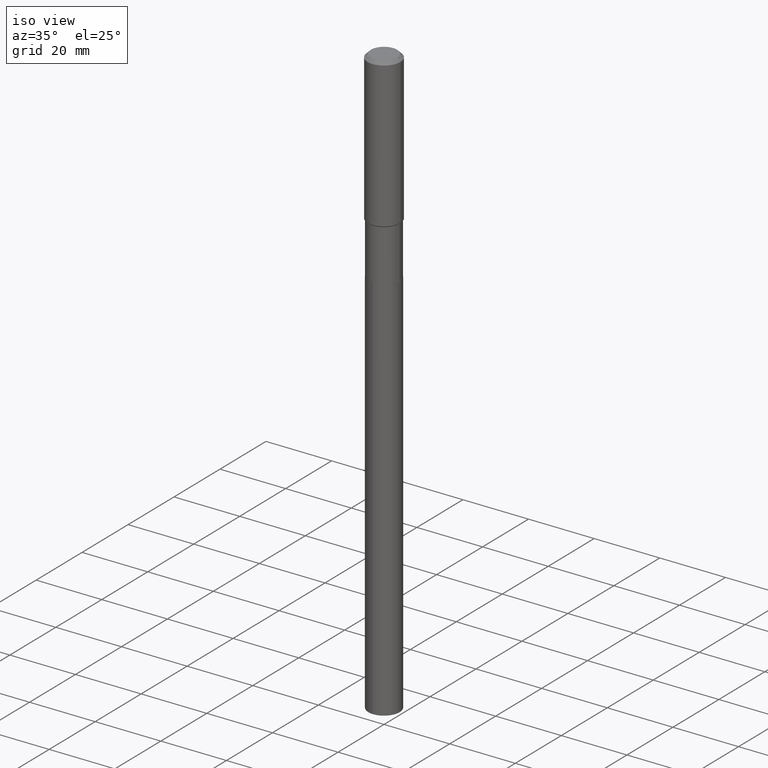
[diagram: clean part render]
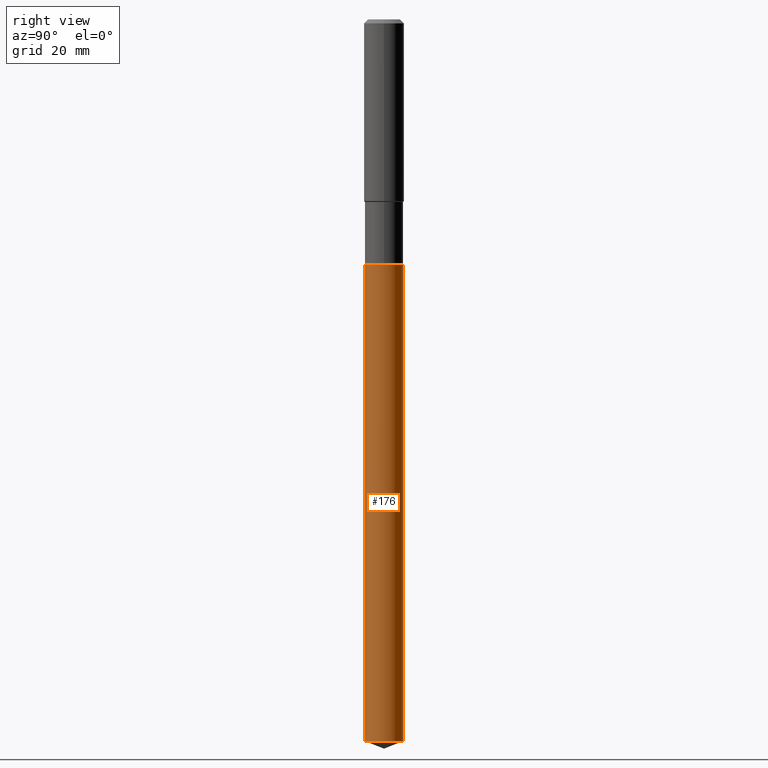
[diagram: tour spotlight — one face highlighted and labeled with its STEP entity id]
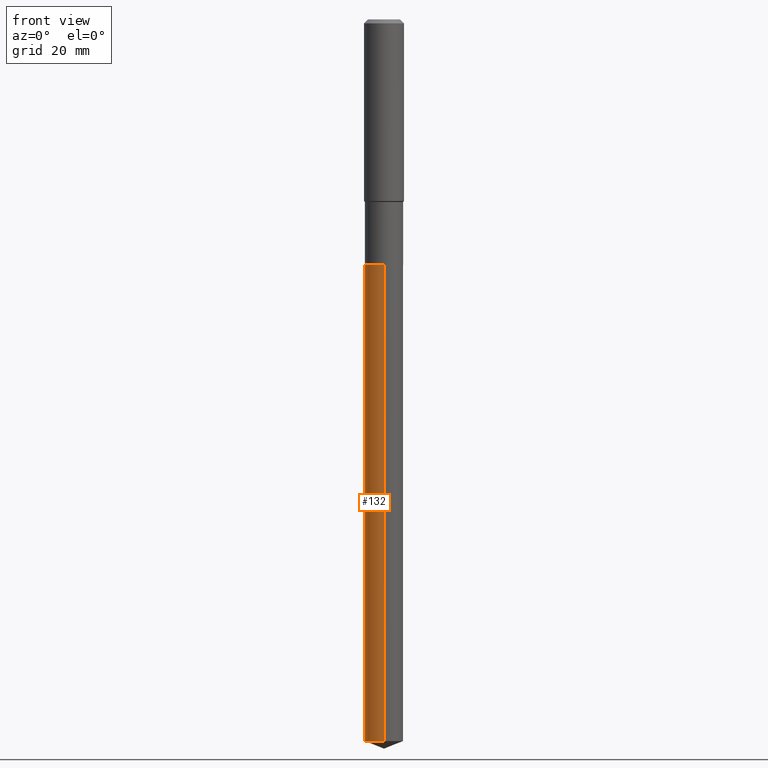
[diagram: tour spotlight — one face highlighted and labeled with its STEP entity id]
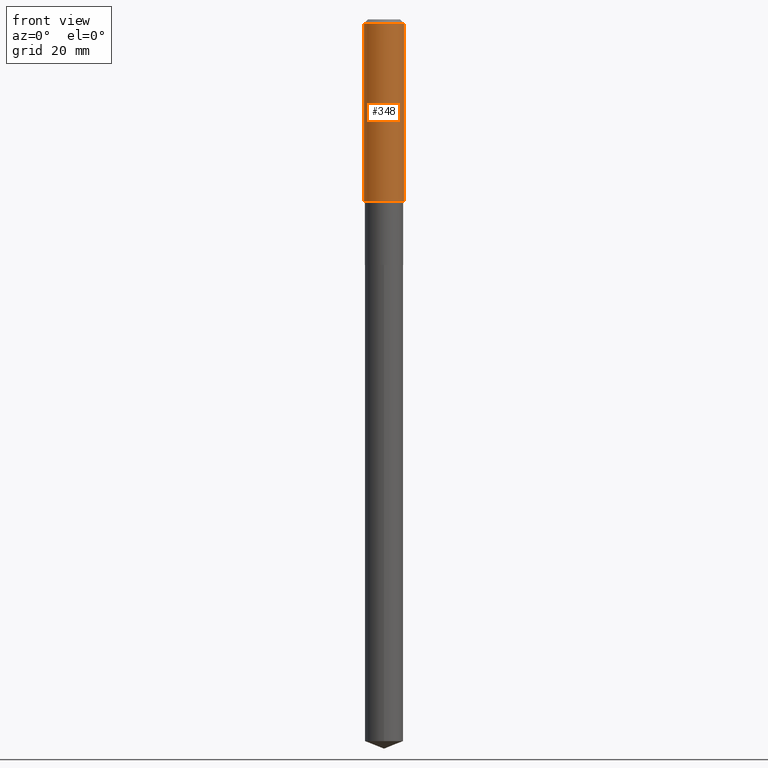
[diagram: tour spotlight — one face highlighted and labeled with its STEP entity id]
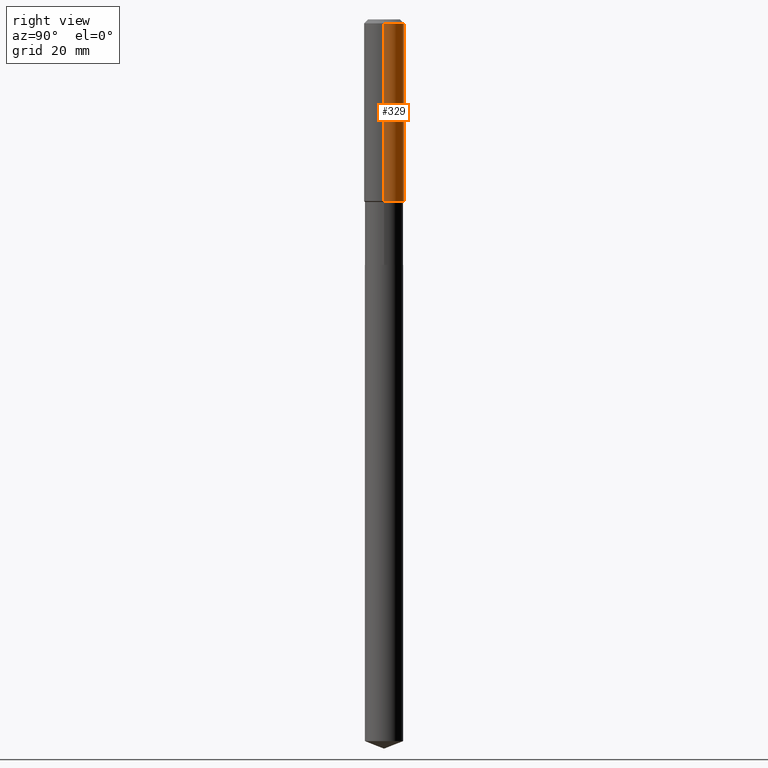
[diagram: tour spotlight — one face highlighted and labeled with its STEP entity id]
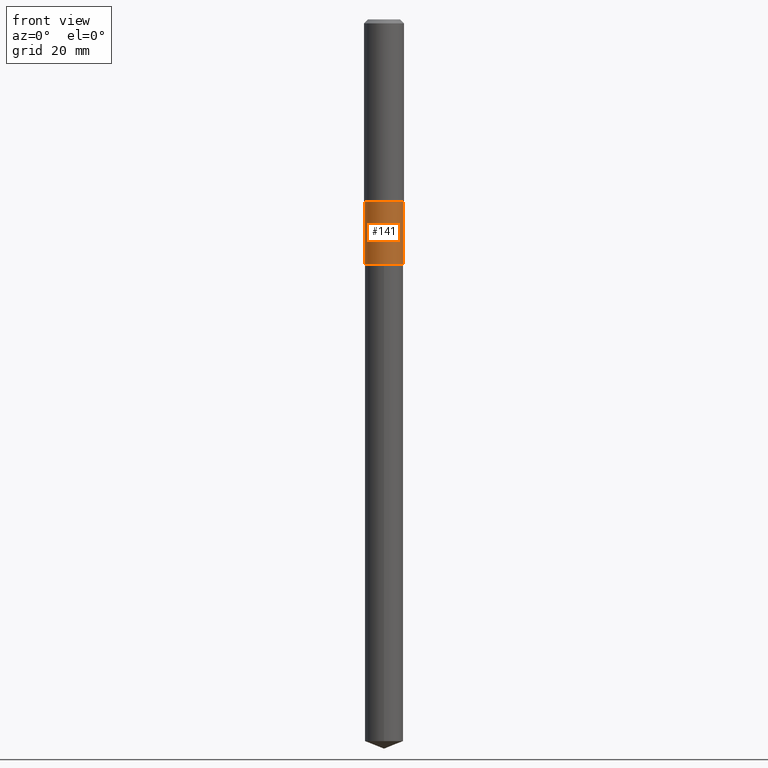
[diagram: tour spotlight — one face highlighted and labeled with its STEP entity id]
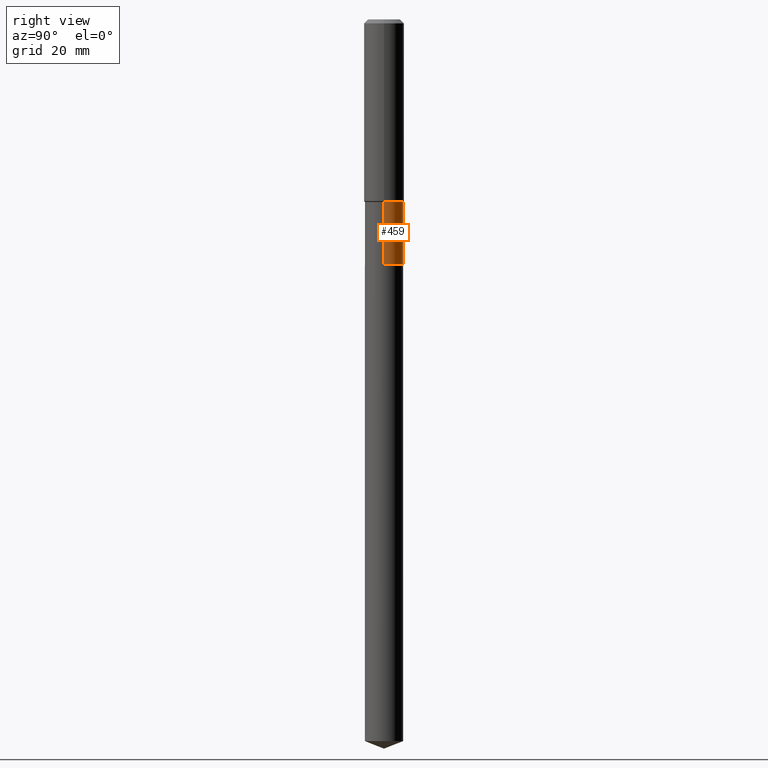
[diagram: tour spotlight — one face highlighted and labeled with its STEP entity id]
A machine part: a face-by-face anatomy tour. The part has 17 B-rep faces; the first image is the clean iso view, then the 6 largest visible faces are spotlighted one at a time (largest first), each with its STEP entity span.

Face 1 — right view, entity #176. In plain terms, the highlighted cylindrical surface (edge-blend (fillet) strip) has radius 4.7625 mm, axis along (-0, 0, 1).
Definition (entity closure, byte-faithful):
#20 = DIRECTION ( 'NONE',  ( -2.445489751636567891E-29, 3.491451343764555193E-15, 1.000000000000000000 ) ) ;
#24 = VERTEX_POINT ( 'NONE', #182 ) ;
#28 = ORIENTED_EDGE ( 'NONE', *, *, #269, .T. ) ;
#43 = EDGE_CURVE ( 'NONE', #368, #24, #467, .T. ) ;
#56 = CARTESIAN_POINT ( 'NONE',  ( -1.309305502066116041E-15, -0.1875000000000084377, -2.412499999999998757 ) ) ;
#65 = CARTESIAN_POINT ( 'NONE',  ( 5.899693494921640470E-29, -8.423198729959086830E-15, -2.412499999999999645 ) ) ;
#69 = VECTOR ( 'NONE', #237, 39.37007874015748143 ) ;
#71 = ORIENTED_EDGE ( 'NONE', *, *, #43, .T. ) ;
#77 = CIRCLE ( 'NONE', #188, 0.1875000000000000278 ) ;
#97 = CYLINDRICAL_SURFACE ( 'NONE', #257, 0.1875000000000000278 ) ;
#107 = CARTESIAN_POINT ( 'NONE',  ( 1.734126403372843801E-28, -2.475844888006100579E-14, -7.091141785822198784 ) ) ;
#140 = DIRECTION ( 'NONE',  ( -2.445489751636567891E-29, 3.491451343764555193E-15, 1.000000000000000000 ) ) ;
#142 = EDGE_LOOP ( 'NONE', ( #71, #28, #409, #482 ) ) ;
#150 = EDGE_CURVE ( 'NONE', #368, #279, #300, .T. ) ;
#171 = VECTOR ( 'NONE', #369, 39.37007874015748143 ) ;
#174 = LINE ( 'NONE', #476, #171 ) ;
#175 = DIRECTION ( 'NONE',  ( -2.445489751636567891E-29, 3.491451343764555193E-15, 1.000000000000000000 ) ) ;
#176 = ADVANCED_FACE ( 'NONE', ( #201 ), #97, .T. ) ;
#182 = CARTESIAN_POINT ( 'NONE',  ( 1.332267629550361595E-15, 0.1874999999999753253, -7.091141785822199672 ) ) ;
#188 = AXIS2_PLACEMENT_3D ( 'NONE', #65, #175, #312 ) ;
#200 = EDGE_CURVE ( 'NONE', #279, #478, #77, .T. ) ;
#201 = FACE_OUTER_BOUND ( 'NONE', #142, .T. ) ;
#218 = CARTESIAN_POINT ( 'NONE',  ( -1.309305502066116041E-15, -0.1875000000000084377, -2.412499999999998757 ) ) ;
#237 = DIRECTION ( 'NONE',  ( -2.445489751636567891E-29, 3.491451343764555193E-15, 1.000000000000000000 ) ) ;
#242 = AXIS2_PLACEMENT_3D ( 'NONE', #107, #140, #439 ) ;
#257 = AXIS2_PLACEMENT_3D ( 'NONE', #431, #20, #305 ) ;
#269 = EDGE_CURVE ( 'NONE', #24, #478, #174, .T. ) ;
#279 = VERTEX_POINT ( 'NONE', #218 ) ;
#300 = LINE ( 'NONE', #56, #69 ) ;
#305 = DIRECTION ( 'NONE',  ( -6.982962677686265922E-15, -1.000000000000000000, 2.913971193241880372E-15 ) ) ;
#312 = DIRECTION ( 'NONE',  ( -6.982962677686265922E-15, -1.000000000000000000, 2.913971193241880372E-15 ) ) ;
#368 = VERTEX_POINT ( 'NONE', #387 ) ;
#369 = DIRECTION ( 'NONE',  ( -2.445489751636567891E-29, 3.491451343764555193E-15, 1.000000000000000000 ) ) ;
#384 = CARTESIAN_POINT ( 'NONE',  ( 1.332267629550361990E-15, 0.1874999999999915901, -2.412500000000000089 ) ) ;
#387 = CARTESIAN_POINT ( 'NONE',  ( -1.309305502066002050E-15, -0.1875000000000248412, -7.091141785822197896 ) ) ;
#409 = ORIENTED_EDGE ( 'NONE', *, *, #200, .F. ) ;
#431 = CARTESIAN_POINT ( 'NONE',  ( 5.899693494921640470E-29, -8.423198729959086830E-15, -2.412499999999999645 ) ) ;
#439 = DIRECTION ( 'NONE',  ( -6.982962677686265922E-15, -1.000000000000000000, 5.827942386483760744E-15 ) ) ;
#467 = CIRCLE ( 'NONE', #242, 0.1875000000000000278 ) ;
#476 = CARTESIAN_POINT ( 'NONE',  ( 1.332267629550246619E-15, 0.1874999999999915901, -2.412500000000000089 ) ) ;
#478 = VERTEX_POINT ( 'NONE', #384 ) ;
#482 = ORIENTED_EDGE ( 'NONE', *, *, #150, .F. ) ;

Face 2 — front view, entity #132. In plain terms, the highlighted cylindrical surface (edge-blend (fillet) strip) has radius 4.7625 mm, axis along (-0, 0, 1).
Definition (entity closure, byte-faithful):
#6 = DIRECTION ( 'NONE',  ( -6.982962677686265922E-15, -1.000000000000000000, 2.913971193241880372E-15 ) ) ;
#24 = VERTEX_POINT ( 'NONE', #182 ) ;
#42 = FACE_OUTER_BOUND ( 'NONE', #360, .T. ) ;
#56 = CARTESIAN_POINT ( 'NONE',  ( -1.309305502066116041E-15, -0.1875000000000084377, -2.412499999999998757 ) ) ;
#69 = VECTOR ( 'NONE', #237, 39.37007874015748143 ) ;
#101 = EDGE_CURVE ( 'NONE', #24, #368, #207, .T. ) ;
#123 = DIRECTION ( 'NONE',  ( -6.982962677686265922E-15, -1.000000000000000000, 5.827942386483760744E-15 ) ) ;
#132 = ADVANCED_FACE ( 'NONE', ( #42 ), #335, .T. ) ;
#135 = EDGE_CURVE ( 'NONE', #478, #279, #367, .T. ) ;
#150 = EDGE_CURVE ( 'NONE', #368, #279, #300, .T. ) ;
#152 = CARTESIAN_POINT ( 'NONE',  ( 5.899693494921640470E-29, -8.423198729959086830E-15, -2.412499999999999645 ) ) ;
#161 = DIRECTION ( 'NONE',  ( -2.445489751636567891E-29, 3.491451343764555193E-15, 1.000000000000000000 ) ) ;
#171 = VECTOR ( 'NONE', #369, 39.37007874015748143 ) ;
#174 = LINE ( 'NONE', #476, #171 ) ;
#182 = CARTESIAN_POINT ( 'NONE',  ( 1.332267629550361595E-15, 0.1874999999999753253, -7.091141785822199672 ) ) ;
#194 = DIRECTION ( 'NONE',  ( -6.982962677686265922E-15, -1.000000000000000000, 2.913971193241880372E-15 ) ) ;
#202 = DIRECTION ( 'NONE',  ( -2.445489751636567891E-29, 3.491451343764555193E-15, 1.000000000000000000 ) ) ;
#207 = CIRCLE ( 'NONE', #265, 0.1875000000000000278 ) ;
#218 = CARTESIAN_POINT ( 'NONE',  ( -1.309305502066116041E-15, -0.1875000000000084377, -2.412499999999998757 ) ) ;
#222 = ORIENTED_EDGE ( 'NONE', *, *, #269, .F. ) ;
#237 = DIRECTION ( 'NONE',  ( -2.445489751636567891E-29, 3.491451343764555193E-15, 1.000000000000000000 ) ) ;
#249 = AXIS2_PLACEMENT_3D ( 'NONE', #152, #418, #6 ) ;
#251 = ORIENTED_EDGE ( 'NONE', *, *, #135, .F. ) ;
#265 = AXIS2_PLACEMENT_3D ( 'NONE', #461, #202, #123 ) ;
#269 = EDGE_CURVE ( 'NONE', #24, #478, #174, .T. ) ;
#271 = ORIENTED_EDGE ( 'NONE', *, *, #101, .T. ) ;
#279 = VERTEX_POINT ( 'NONE', #218 ) ;
#300 = LINE ( 'NONE', #56, #69 ) ;
#335 = CYLINDRICAL_SURFACE ( 'NONE', #249, 0.1875000000000000278 ) ;
#360 = EDGE_LOOP ( 'NONE', ( #222, #271, #434, #251 ) ) ;
#367 = CIRCLE ( 'NONE', #381, 0.1875000000000000278 ) ;
#368 = VERTEX_POINT ( 'NONE', #387 ) ;
#369 = DIRECTION ( 'NONE',  ( -2.445489751636567891E-29, 3.491451343764555193E-15, 1.000000000000000000 ) ) ;
#381 = AXIS2_PLACEMENT_3D ( 'NONE', #458, #161, #194 ) ;
#384 = CARTESIAN_POINT ( 'NONE',  ( 1.332267629550361990E-15, 0.1874999999999915901, -2.412500000000000089 ) ) ;
#387 = CARTESIAN_POINT ( 'NONE',  ( -1.309305502066002050E-15, -0.1875000000000248412, -7.091141785822197896 ) ) ;
#418 = DIRECTION ( 'NONE',  ( -2.445489751636567891E-29, 3.491451343764555193E-15, 1.000000000000000000 ) ) ;
#434 = ORIENTED_EDGE ( 'NONE', *, *, #150, .T. ) ;
#458 = CARTESIAN_POINT ( 'NONE',  ( 5.899693494921640470E-29, -8.423198729959086830E-15, -2.412499999999999645 ) ) ;
#461 = CARTESIAN_POINT ( 'NONE',  ( 1.734126403372843801E-28, -2.475844888006100579E-14, -7.091141785822198784 ) ) ;
#476 = CARTESIAN_POINT ( 'NONE',  ( 1.332267629550246619E-15, 0.1874999999999915901, -2.412500000000000089 ) ) ;
#478 = VERTEX_POINT ( 'NONE', #384 ) ;

Face 3 — front view, entity #348. In plain terms, the highlighted cylindrical surface (edge-blend (fillet) strip) has radius 5 mm, axis along (-0, 0, 1).
Definition (entity closure, byte-faithful):
#4 = AXIS2_PLACEMENT_3D ( 'NONE', #473, #96, #235 ) ;
#8 = LINE ( 'NONE', #116, #114 ) ;
#32 = ORIENTED_EDGE ( 'NONE', *, *, #105, .T. ) ;
#61 = DIRECTION ( 'NONE',  ( -2.445468806185136597E-29, 3.491481338843145583E-15, 1.000000000000000000 ) ) ;
#62 = AXIS2_PLACEMENT_3D ( 'NONE', #270, #61, #471 ) ;
#63 = CIRCLE ( 'NONE', #317, 0.1968500000000000250 ) ;
#67 = ORIENTED_EDGE ( 'NONE', *, *, #219, .F. ) ;
#74 = EDGE_CURVE ( 'NONE', #438, #361, #8, .T. ) ;
#91 = CARTESIAN_POINT ( 'NONE',  ( 0.1968500000000001082, -1.374596203102542397E-15, 9.598753983154305062E-30 ) ) ;
#96 = DIRECTION ( 'NONE',  ( -2.445468806185136597E-29, 3.491481338843145583E-15, 1.000000000000000000 ) ) ;
#104 = EDGE_CURVE ( 'NONE', #438, #127, #301, .T. ) ;
#105 = EDGE_CURVE ( 'NONE', #127, #210, #238, .T. ) ;
#114 = VECTOR ( 'NONE', #199, 39.37007874015748143 ) ;
#116 = CARTESIAN_POINT ( 'NONE',  ( -0.1968500000000001082, 1.398703375343757985E-15, -9.682923725166787881E-30 ) ) ;
#127 = VERTEX_POINT ( 'NONE', #347 ) ;
#146 = EDGE_LOOP ( 'NONE', ( #166, #444, #32, #67 ) ) ;
#166 = ORIENTED_EDGE ( 'NONE', *, *, #74, .F. ) ;
#172 = CYLINDRICAL_SURFACE ( 'NONE', #4, 0.1968500000000001082 ) ;
#199 = DIRECTION ( 'NONE',  ( -2.445468806185136877E-29, 3.491481338843145188E-15, 1.000000000000000000 ) ) ;
#210 = VERTEX_POINT ( 'NONE', #362 ) ;
#219 = EDGE_CURVE ( 'NONE', #361, #210, #63, .T. ) ;
#225 = DIRECTION ( 'NONE',  ( -2.445468806185136877E-29, 3.491481338843145188E-15, 1.000000000000000000 ) ) ;
#235 = DIRECTION ( 'NONE',  ( 1.000000000000000000, -6.982962677686266711E-15, 4.876176775795935793E-29 ) ) ;
#238 = LINE ( 'NONE', #91, #325 ) ;
#270 = CARTESIAN_POINT ( 'NONE',  ( 4.363572264316447914E-29, -6.230024726964765516E-15, -1.784349999999999881 ) ) ;
#292 = DIRECTION ( 'NONE',  ( -2.445468806185136597E-29, 3.491481338843145583E-15, 1.000000000000000000 ) ) ;
#301 = CIRCLE ( 'NONE', #62, 0.1968500000000002192 ) ;
#317 = AXIS2_PLACEMENT_3D ( 'NONE', #377, #292, #445 ) ;
#325 = VECTOR ( 'NONE', #225, 39.37007874015748143 ) ;
#347 = CARTESIAN_POINT ( 'NONE',  ( 0.1968500000000002192, -7.604620930067308702E-15, -1.784349999999999881 ) ) ;
#348 = ADVANCED_FACE ( 'NONE', ( #354 ), #172, .T. ) ;
#354 = FACE_OUTER_BOUND ( 'NONE', #146, .T. ) ;
#361 = VERTEX_POINT ( 'NONE', #391 ) ;
#362 = CARTESIAN_POINT ( 'NONE',  ( 0.1968500000000000250, -1.512055823412797189E-15, -0.03937000000000026589 ) ) ;
#377 = CARTESIAN_POINT ( 'NONE',  ( 9.627810689950948900E-31, -1.374596203102555561E-16, -0.03937000000000026589 ) ) ;
#391 = CARTESIAN_POINT ( 'NONE',  ( -0.1968500000000000250, -1.785038798293752366E-15, -0.03937000000000026589 ) ) ;
#419 = CARTESIAN_POINT ( 'NONE',  ( -0.1968500000000002192, -4.831321351621006940E-15, -1.784349999999999881 ) ) ;
#438 = VERTEX_POINT ( 'NONE', #419 ) ;
#444 = ORIENTED_EDGE ( 'NONE', *, *, #104, .T. ) ;
#445 = DIRECTION ( 'NONE',  ( 1.000000000000000000, -6.982962677686265922E-15, 0.000000000000000000 ) ) ;
#471 = DIRECTION ( 'NONE',  ( 1.000000000000000000, -6.982962677686265922E-15, 0.000000000000000000 ) ) ;
#473 = CARTESIAN_POINT ( 'NONE',  ( 0.000000000000000000, 0.000000000000000000, 0.000000000000000000 ) ) ;

Face 4 — right view, entity #329. In plain terms, the highlighted cylindrical surface (edge-blend (fillet) strip) has radius 5 mm, axis along (-0, 0, 1).
Definition (entity closure, byte-faithful):
#7 = FACE_OUTER_BOUND ( 'NONE', #351, .T. ) ;
#8 = LINE ( 'NONE', #116, #114 ) ;
#13 = EDGE_CURVE ( 'NONE', #127, #438, #23, .T. ) ;
#15 = DIRECTION ( 'NONE',  ( -2.445468806185136597E-29, 3.491481338843145583E-15, 1.000000000000000000 ) ) ;
#23 = CIRCLE ( 'NONE', #54, 0.1968500000000002192 ) ;
#54 = AXIS2_PLACEMENT_3D ( 'NONE', #113, #370, #256 ) ;
#74 = EDGE_CURVE ( 'NONE', #438, #361, #8, .T. ) ;
#91 = CARTESIAN_POINT ( 'NONE',  ( 0.1968500000000001082, -1.374596203102542397E-15, 9.598753983154305062E-30 ) ) ;
#105 = EDGE_CURVE ( 'NONE', #127, #210, #238, .T. ) ;
#112 = ORIENTED_EDGE ( 'NONE', *, *, #74, .T. ) ;
#113 = CARTESIAN_POINT ( 'NONE',  ( 4.363572264316447914E-29, -6.230024726964765516E-15, -1.784349999999999881 ) ) ;
#114 = VECTOR ( 'NONE', #199, 39.37007874015748143 ) ;
#115 = AXIS2_PLACEMENT_3D ( 'NONE', #334, #330, #340 ) ;
#116 = CARTESIAN_POINT ( 'NONE',  ( -0.1968500000000001082, 1.398703375343757985E-15, -9.682923725166787881E-30 ) ) ;
#127 = VERTEX_POINT ( 'NONE', #347 ) ;
#138 = ORIENTED_EDGE ( 'NONE', *, *, #13, .T. ) ;
#170 = CYLINDRICAL_SURFACE ( 'NONE', #428, 0.1968500000000001082 ) ;
#199 = DIRECTION ( 'NONE',  ( -2.445468806185136877E-29, 3.491481338843145188E-15, 1.000000000000000000 ) ) ;
#210 = VERTEX_POINT ( 'NONE', #362 ) ;
#225 = DIRECTION ( 'NONE',  ( -2.445468806185136877E-29, 3.491481338843145188E-15, 1.000000000000000000 ) ) ;
#238 = LINE ( 'NONE', #91, #325 ) ;
#256 = DIRECTION ( 'NONE',  ( 1.000000000000000000, -6.982962677686265922E-15, 0.000000000000000000 ) ) ;
#281 = ORIENTED_EDGE ( 'NONE', *, *, #299, .F. ) ;
#299 = EDGE_CURVE ( 'NONE', #210, #361, #441, .T. ) ;
#303 = CARTESIAN_POINT ( 'NONE',  ( 0.000000000000000000, 0.000000000000000000, 0.000000000000000000 ) ) ;
#325 = VECTOR ( 'NONE', #225, 39.37007874015748143 ) ;
#329 = ADVANCED_FACE ( 'NONE', ( #7 ), #170, .T. ) ;
#330 = DIRECTION ( 'NONE',  ( -2.445468806185136597E-29, 3.491481338843145583E-15, 1.000000000000000000 ) ) ;
#334 = CARTESIAN_POINT ( 'NONE',  ( 9.627810689950948900E-31, -1.374596203102555561E-16, -0.03937000000000026589 ) ) ;
#340 = DIRECTION ( 'NONE',  ( 1.000000000000000000, -6.982962677686265922E-15, 0.000000000000000000 ) ) ;
#347 = CARTESIAN_POINT ( 'NONE',  ( 0.1968500000000002192, -7.604620930067308702E-15, -1.784349999999999881 ) ) ;
#351 = EDGE_LOOP ( 'NONE', ( #138, #112, #281, #400 ) ) ;
#361 = VERTEX_POINT ( 'NONE', #391 ) ;
#362 = CARTESIAN_POINT ( 'NONE',  ( 0.1968500000000000250, -1.512055823412797189E-15, -0.03937000000000026589 ) ) ;
#370 = DIRECTION ( 'NONE',  ( -2.445468806185136597E-29, 3.491481338843145583E-15, 1.000000000000000000 ) ) ;
#391 = CARTESIAN_POINT ( 'NONE',  ( -0.1968500000000000250, -1.785038798293752366E-15, -0.03937000000000026589 ) ) ;
#400 = ORIENTED_EDGE ( 'NONE', *, *, #105, .F. ) ;
#419 = CARTESIAN_POINT ( 'NONE',  ( -0.1968500000000002192, -4.831321351621006940E-15, -1.784349999999999881 ) ) ;
#428 = AXIS2_PLACEMENT_3D ( 'NONE', #303, #15, #466 ) ;
#438 = VERTEX_POINT ( 'NONE', #419 ) ;
#441 = CIRCLE ( 'NONE', #115, 0.1968500000000000250 ) ;
#466 = DIRECTION ( 'NONE',  ( 1.000000000000000000, -6.982962677686266711E-15, 4.876176775795935793E-29 ) ) ;

Face 5 — front view, entity #141. In plain terms, the highlighted cylindrical surface (edge-blend (fillet) strip) has radius 4.7625 mm, axis along (-0, 0, 1).
Definition (entity closure, byte-faithful):
#2 = AXIS2_PLACEMENT_3D ( 'NONE', #35, #78, #224 ) ;
#22 = EDGE_CURVE ( 'NONE', #422, #399, #336, .T. ) ;
#35 = CARTESIAN_POINT ( 'NONE',  ( 5.898470760518548790E-29, -8.421452989289666115E-15, -2.411999999999999478 ) ) ;
#75 = DIRECTION ( 'NONE',  ( -2.445468806185136597E-29, 3.491481338843145583E-15, 1.000000000000000000 ) ) ;
#78 = DIRECTION ( 'NONE',  ( -2.445468806185136597E-29, 3.491481338843145583E-15, 1.000000000000000000 ) ) ;
#85 = CARTESIAN_POINT ( 'NONE',  ( 0.1875000000000000278, -9.730758491355841123E-15, -2.411999999999999478 ) ) ;
#94 = CARTESIAN_POINT ( 'NONE',  ( 4.386437397654279602E-29, -6.262670077482950394E-15, -1.793700000000000072 ) ) ;
#100 = VERTEX_POINT ( 'NONE', #263 ) ;
#120 = VECTOR ( 'NONE', #274, 39.37007874015748143 ) ;
#121 = VECTOR ( 'NONE', #293, 39.37007874015748143 ) ;
#129 = EDGE_CURVE ( 'NONE', #422, #100, #465, .T. ) ;
#133 = ORIENTED_EDGE ( 'NONE', *, *, #22, .T. ) ;
#141 = ADVANCED_FACE ( 'NONE', ( #295 ), #385, .T. ) ;
#148 = ORIENTED_EDGE ( 'NONE', *, *, #407, .F. ) ;
#149 = CARTESIAN_POINT ( 'NONE',  ( 0.1874999999999999722, -1.309305502066174811E-15, 9.142831454617378210E-30 ) ) ;
#187 = CARTESIAN_POINT ( 'NONE',  ( -0.1874999999999999722, 1.332267629550187651E-15, -9.223003294227946589E-30 ) ) ;
#216 = VERTEX_POINT ( 'NONE', #315 ) ;
#224 = DIRECTION ( 'NONE',  ( 1.000000000000000000, -6.982962677686266711E-15, 0.000000000000000000 ) ) ;
#228 = CIRCLE ( 'NONE', #353, 0.1874999999999999445 ) ;
#232 = EDGE_CURVE ( 'NONE', #399, #216, #490, .T. ) ;
#263 = CARTESIAN_POINT ( 'NONE',  ( -0.1874999999999999445, -6.009793903836120406E-15, -1.793700000000000072 ) ) ;
#274 = DIRECTION ( 'NONE',  ( -2.445468806185136877E-29, 3.491481338843145188E-15, 1.000000000000000000 ) ) ;
#276 = ORIENTED_EDGE ( 'NONE', *, *, #232, .T. ) ;
#293 = DIRECTION ( 'NONE',  ( -2.445468806185136877E-29, 3.491481338843145188E-15, 1.000000000000000000 ) ) ;
#295 = FACE_OUTER_BOUND ( 'NONE', #314, .T. ) ;
#298 = DIRECTION ( 'NONE',  ( -2.445468806185136597E-29, 3.491481338843145583E-15, 1.000000000000000000 ) ) ;
#314 = EDGE_LOOP ( 'NONE', ( #427, #133, #276, #148 ) ) ;
#315 = CARTESIAN_POINT ( 'NONE',  ( 0.1874999999999999445, -7.571975579549125402E-15, -1.793700000000000072 ) ) ;
#327 = CARTESIAN_POINT ( 'NONE',  ( -0.1875000000000000278, -6.009793903836120406E-15, -2.411999999999999478 ) ) ;
#336 = CIRCLE ( 'NONE', #2, 0.1875000000000000278 ) ;
#353 = AXIS2_PLACEMENT_3D ( 'NONE', #94, #75, #397 ) ;
#385 = CYLINDRICAL_SURFACE ( 'NONE', #479, 0.1874999999999999722 ) ;
#397 = DIRECTION ( 'NONE',  ( 1.000000000000000000, -6.982962677686264344E-15, 0.000000000000000000 ) ) ;
#399 = VERTEX_POINT ( 'NONE', #85 ) ;
#407 = EDGE_CURVE ( 'NONE', #100, #216, #228, .T. ) ;
#422 = VERTEX_POINT ( 'NONE', #327 ) ;
#427 = ORIENTED_EDGE ( 'NONE', *, *, #129, .F. ) ;
#454 = DIRECTION ( 'NONE',  ( 1.000000000000000000, -6.982962677686266711E-15, 4.876176775795935793E-29 ) ) ;
#463 = CARTESIAN_POINT ( 'NONE',  ( 0.000000000000000000, 0.000000000000000000, 0.000000000000000000 ) ) ;
#465 = LINE ( 'NONE', #187, #120 ) ;
#479 = AXIS2_PLACEMENT_3D ( 'NONE', #463, #298, #454 ) ;
#490 = LINE ( 'NONE', #149, #121 ) ;

Face 6 — right view, entity #459. In plain terms, the highlighted cylindrical surface (edge-blend (fillet) strip) has radius 4.7625 mm, axis along (-0, 0, 1).
Definition (entity closure, byte-faithful):
#12 = DIRECTION ( 'NONE',  ( -2.445468806185136597E-29, 3.491481338843145583E-15, 1.000000000000000000 ) ) ;
#70 = ORIENTED_EDGE ( 'NONE', *, *, #151, .F. ) ;
#85 = CARTESIAN_POINT ( 'NONE',  ( 0.1875000000000000278, -9.730758491355841123E-15, -2.411999999999999478 ) ) ;
#87 = CARTESIAN_POINT ( 'NONE',  ( 5.898470760518548790E-29, -8.421452989289666115E-15, -2.411999999999999478 ) ) ;
#88 = CARTESIAN_POINT ( 'NONE',  ( 0.000000000000000000, 0.000000000000000000, 0.000000000000000000 ) ) ;
#100 = VERTEX_POINT ( 'NONE', #263 ) ;
#120 = VECTOR ( 'NONE', #274, 39.37007874015748143 ) ;
#121 = VECTOR ( 'NONE', #293, 39.37007874015748143 ) ;
#129 = EDGE_CURVE ( 'NONE', #422, #100, #465, .T. ) ;
#137 = ORIENTED_EDGE ( 'NONE', *, *, #232, .F. ) ;
#147 = EDGE_CURVE ( 'NONE', #399, #422, #273, .T. ) ;
#149 = CARTESIAN_POINT ( 'NONE',  ( 0.1874999999999999722, -1.309305502066174811E-15, 9.142831454617378210E-30 ) ) ;
#151 = EDGE_CURVE ( 'NONE', #216, #100, #469, .T. ) ;
#158 = DIRECTION ( 'NONE',  ( 1.000000000000000000, -6.982962677686266711E-15, 0.000000000000000000 ) ) ;
#168 = DIRECTION ( 'NONE',  ( -2.445468806185136597E-29, 3.491481338843145583E-15, 1.000000000000000000 ) ) ;
#187 = CARTESIAN_POINT ( 'NONE',  ( -0.1874999999999999722, 1.332267629550187651E-15, -9.223003294227946589E-30 ) ) ;
#193 = DIRECTION ( 'NONE',  ( 1.000000000000000000, -6.982962677686266711E-15, 4.876176775795935793E-29 ) ) ;
#208 = AXIS2_PLACEMENT_3D ( 'NONE', #275, #168, #349 ) ;
#216 = VERTEX_POINT ( 'NONE', #315 ) ;
#231 = DIRECTION ( 'NONE',  ( -2.445468806185136597E-29, 3.491481338843145583E-15, 1.000000000000000000 ) ) ;
#232 = EDGE_CURVE ( 'NONE', #399, #216, #490, .T. ) ;
#263 = CARTESIAN_POINT ( 'NONE',  ( -0.1874999999999999445, -6.009793903836120406E-15, -1.793700000000000072 ) ) ;
#266 = AXIS2_PLACEMENT_3D ( 'NONE', #87, #12, #158 ) ;
#268 = CYLINDRICAL_SURFACE ( 'NONE', #286, 0.1874999999999999722 ) ;
#273 = CIRCLE ( 'NONE', #266, 0.1875000000000000278 ) ;
#274 = DIRECTION ( 'NONE',  ( -2.445468806185136877E-29, 3.491481338843145188E-15, 1.000000000000000000 ) ) ;
#275 = CARTESIAN_POINT ( 'NONE',  ( 4.386437397654279602E-29, -6.262670077482950394E-15, -1.793700000000000072 ) ) ;
#286 = AXIS2_PLACEMENT_3D ( 'NONE', #88, #231, #193 ) ;
#293 = DIRECTION ( 'NONE',  ( -2.445468806185136877E-29, 3.491481338843145188E-15, 1.000000000000000000 ) ) ;
#315 = CARTESIAN_POINT ( 'NONE',  ( 0.1874999999999999445, -7.571975579549125402E-15, -1.793700000000000072 ) ) ;
#327 = CARTESIAN_POINT ( 'NONE',  ( -0.1875000000000000278, -6.009793903836120406E-15, -2.411999999999999478 ) ) ;
#328 = ORIENTED_EDGE ( 'NONE', *, *, #129, .T. ) ;
#349 = DIRECTION ( 'NONE',  ( 1.000000000000000000, -6.982962677686264344E-15, 0.000000000000000000 ) ) ;
#364 = ORIENTED_EDGE ( 'NONE', *, *, #147, .T. ) ;
#395 = EDGE_LOOP ( 'NONE', ( #364, #328, #70, #137 ) ) ;
#399 = VERTEX_POINT ( 'NONE', #85 ) ;
#422 = VERTEX_POINT ( 'NONE', #327 ) ;
#457 = FACE_OUTER_BOUND ( 'NONE', #395, .T. ) ;
#459 = ADVANCED_FACE ( 'NONE', ( #457 ), #268, .T. ) ;
#465 = LINE ( 'NONE', #187, #120 ) ;
#469 = CIRCLE ( 'NONE', #208, 0.1874999999999999445 ) ;
#490 = LINE ( 'NONE', #149, #121 ) ;